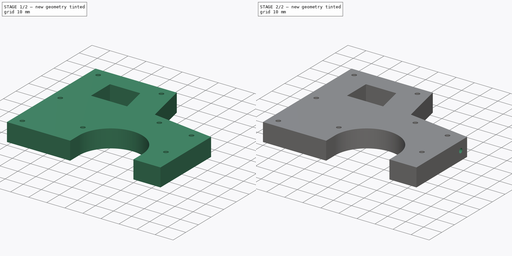
[diagram: build sequence overview — one tinted view per stage of 2, left to right]
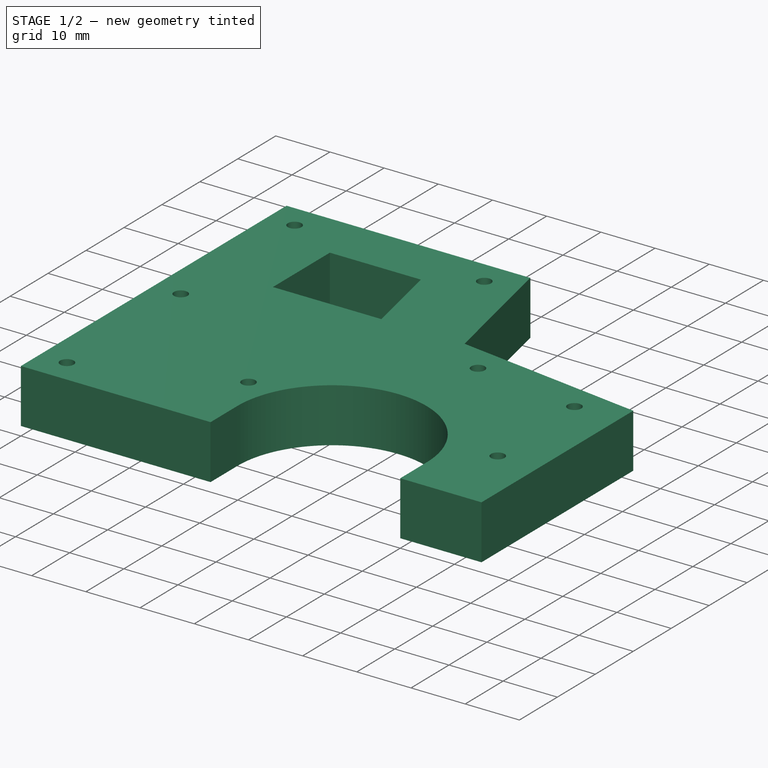
[diagram: stage 1 of 2 — iso view after this stage's code; geometry added in this stage tinted green]
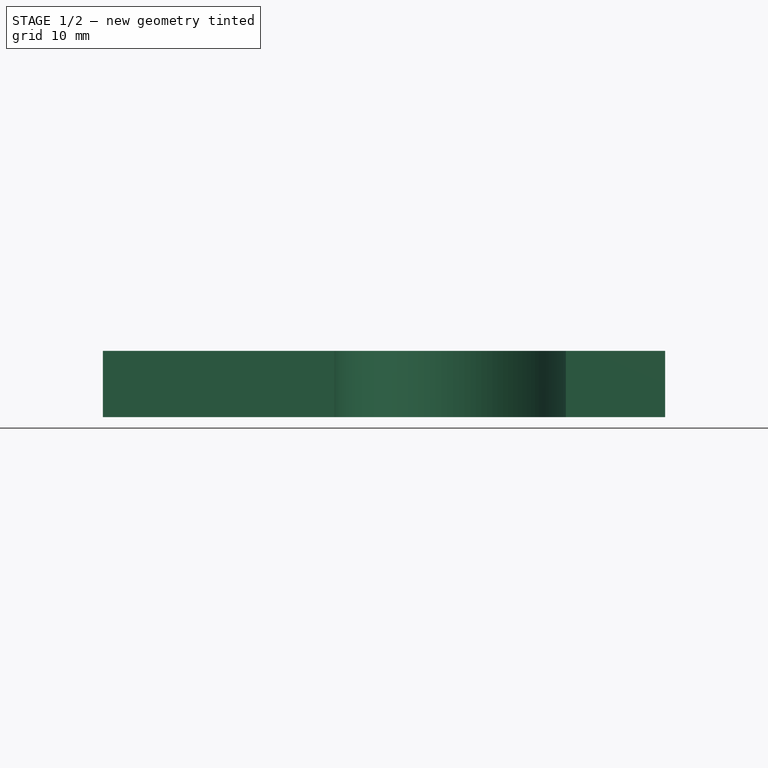
[diagram: stage 1 of 2 — front view after this stage's code; geometry added in this stage tinted green]
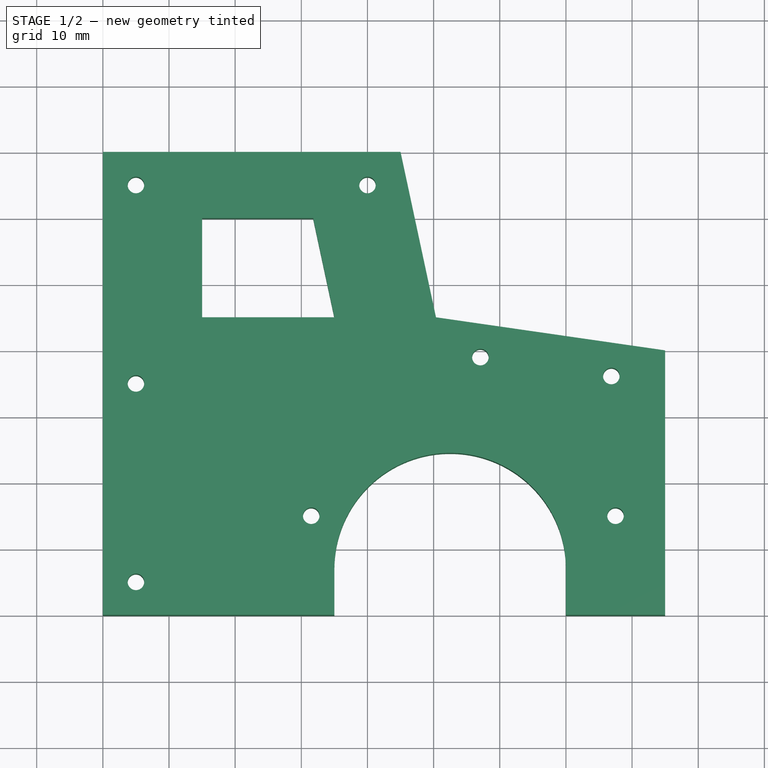
[diagram: stage 1 of 2 — top view after this stage's code; geometry added in this stage tinted green]
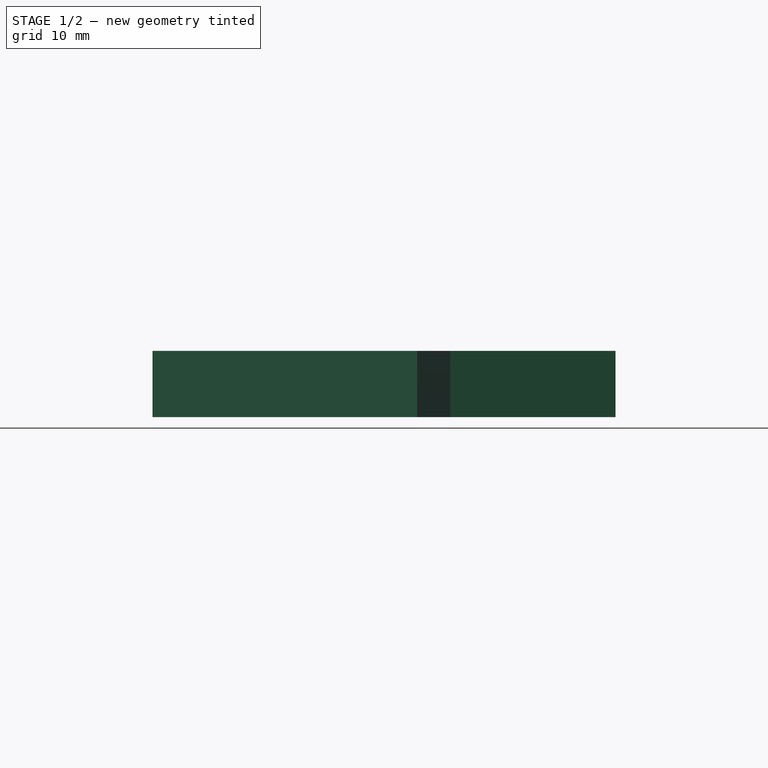
[diagram: stage 1 of 2 — right view after this stage's code; geometry added in this stage tinted green]
FCSTD DOCUMENT  (FreeCAD 0.19R)
Label: cabin_door
License: All rights reserved
LicenseURL: http://en.wikipedia.org/wiki/All_rights_reserved
objects: Sketcher::SketchObject×3, PartDesign::Pocket×2, PartDesign::Pad×1, PartDesign::Body×1
note: 10 computed .brp shape members not serialized (recipe doc carries the construction recipe); baked Part::Feature solids carry a one-line shape summary decoded from their .brp

FEATURE [Sketcher::SketchObject] Sketch
  MapMode = 5
  Support = -> [XY_Plane]
  sketch-geometry (14):
    g0: LineSegment StartX=0 StartY=0 StartZ=0 EndX=0 EndY=70 EndZ=0
    g1: LineSegment StartX=0 StartY=70 StartZ=0 EndX=45 EndY=70 EndZ=0
    g2: LineSegment StartX=45 StartY=70 StartZ=0 EndX=50.359 EndY=45 EndZ=0
    g3: LineSegment StartX=50.359 StartY=45 StartZ=0 EndX=85 EndY=40 EndZ=0
    g4: LineSegment StartX=85 StartY=40 StartZ=0 EndX=85 EndY=0 EndZ=0
    g5: LineSegment StartX=85 StartY=0 StartZ=0 EndX=70 EndY=0 EndZ=0
    g6: LineSegment StartX=0 StartY=0 StartZ=0 EndX=35 EndY=0 EndZ=0
    g7: LineSegment StartX=35 StartY=0 StartZ=0 EndX=35 EndY=7 EndZ=0
    g8: LineSegment StartX=70 StartY=0 StartZ=0 EndX=70 EndY=7 EndZ=0
    g9: ArcOfCircle CenterX=52.5 CenterY=7 CenterZ=0 NormalX=0 NormalY=0 NormalZ=1 AngleXU=0 Radius=17.5 StartAngle=1.7899e-08 EndAngle=3.14159
    g10: LineSegment StartX=15 StartY=60 StartZ=0 EndX=15 EndY=45 EndZ=0
    g11: LineSegment StartX=15 StartY=45 StartZ=0 EndX=35 EndY=45 EndZ=0
    g12: LineSegment StartX=35 StartY=45 StartZ=0 EndX=31.7846 EndY=60 EndZ=0
    g13: LineSegment StartX=31.7846 StartY=60 StartZ=0 EndX=15 EndY=60 EndZ=0
  constraints (42):
    c: Coincident(g0,g-1)
    c: PointOnObject(g0,g-2)
    c: Coincident(g1,g0)
    c: Horizontal(g1)
    c: Coincident(g2,g1)
    c: Coincident(g3,g2)
    c: Coincident(g4,g3)
    c: PointOnObject(g4,g-1)
    c: Vertical(g4)
    c: Coincident(g5,g4)
    c: PointOnObject(g5,g-1)
    c: Coincident(g6,g0)
    c: PointOnObject(g6,g-1)
    c: Coincident(g7,g6)
    c: Vertical(g7)
    c: Coincident(g8,g5)
    c: Vertical(g8)
    c: DistanceY(g7,g7) = 7
    c: Equal(g8,g7)
    c: DistanceX(g6,g6) = 35
    c: DistanceX(g5,g5) = 15
    c: DistanceX(g1,g1) = 45
    c: DistanceY(g0,g0) = 70
    c: DistanceY(g4,g4) = 40
    c: DistanceY(g2,g1) = 25
    c: Coincident(g9,g8)
    c: Coincident(g9,g7)
    c: Diameter(g9) = 35
    c: Tangent(g9,g8)
    c: Vertical(g10)
    c: Coincident(g11,g10)
    c: Horizontal(g11)
    c: Coincident(g12,g11)
    c: Coincident(g13,g12)
    c: Coincident(g13,g10)
    c: Parallel(g2,g12)
    c: Horizontal(g13)
    c: DistanceX(g0,g10) = 15
    c: DistanceX(g11,g11) = 20
    c: DistanceY(g10,g0) = 25
    c: Distance(g2,g3) = 35
    c: DistanceY(g12,g1) = 10
FEATURE [PartDesign::Pad] Pad
  Length = 10
  Length2 = 100
  Profile = -> Sketch
  Type = 0
FEATURE [Sketcher::SketchObject] Sketch001
  ExternalGeometry = -> [Pad]
  MapMode = 5
  Placement = pos=(0,0,10) rot=(0,0,1;0rad)
  Support = -> [Pad]
  sketch-geometry (9):
    g0: Circle CenterX=5 CenterY=5 CenterZ=0 NormalX=0 NormalY=0 NormalZ=1 AngleXU=0 Radius=1.25
    g1: Circle CenterX=5 CenterY=35 CenterZ=0 NormalX=0 NormalY=0 NormalZ=1 AngleXU=0 Radius=1.25
    g2: Circle CenterX=5 CenterY=65 CenterZ=0 NormalX=0 NormalY=0 NormalZ=1 AngleXU=0 Radius=1.25
    g3: Circle CenterX=40 CenterY=65 CenterZ=0 NormalX=0 NormalY=0 NormalZ=1 AngleXU=0 Radius=1.25
    g4: Circle CenterX=57.0678 CenterY=38.9799 CenterZ=0 NormalX=0 NormalY=0 NormalZ=1 AngleXU=0 Radius=1.25
    g5: Circle CenterX=76.8626 CenterY=36.1227 CenterZ=0 NormalX=0 NormalY=0 NormalZ=1 AngleXU=0 Radius=1.25
    g6: LineSegment [constr] StartX=85 StartY=40 StartZ=0 EndX=83.5714 EndY=30.1026 EndZ=0
    g7: Circle CenterX=77.5 CenterY=15 CenterZ=0 NormalX=0 NormalY=0 NormalZ=1 AngleXU=0 Radius=1.25
    g8: Circle CenterX=31.5 CenterY=15 CenterZ=0 NormalX=0 NormalY=0 NormalZ=1 AngleXU=0 Radius=1.25
  constraints (27):
    c: Diameter(g2) = 2.5
    c: Diameter(g1) = 2.5
    c: Diameter(g0) = 2.5
    c: DistanceY(g-1,g0) = 5
    c: DistanceX(g-1,g0) = 5
    c: DistanceX(g-1,g2) = 5
    c: DistanceX(g-1,g1) = 5
    c: DistanceY(g-1,g1) = 35
    c: DistanceY(g-1,g2) = 65
    c: Diameter(g3) = 2.5
    c: DistanceY(g-1,g3) = 65
    c: DistanceX(g-1,g3) = 40
    c: Diameter(g4) = 2.5
    c: Diameter(g5) = 2.5
    c: Distance(g5,g-3) = 5
    c: Distance(g4,g-3) = 5
    c: Coincident(g6,g-3)
    c: Perpendicular(g-3,g6)
    c: Distance(g6,g6) = 10
    c: Distance(g5,g6) = 7.5
    c: Distance(g4,g6) = 27.5
    c: Diameter(g7) = 2.5
    c: Distance(g7,g-4) = 7.5
    c: DistanceY(g-4,g7) = 15
    c: Distance(g8,g-5) = 3.5
    c: DistanceY(g-5,g8) = 15
    c: Diameter(g8) = 2.5
FEATURE [PartDesign::Pocket] Pocket
  BaseFeature = -> Pad
  Length = 10
  Length2 = 100
  Profile = -> Sketch001
  Type = 0
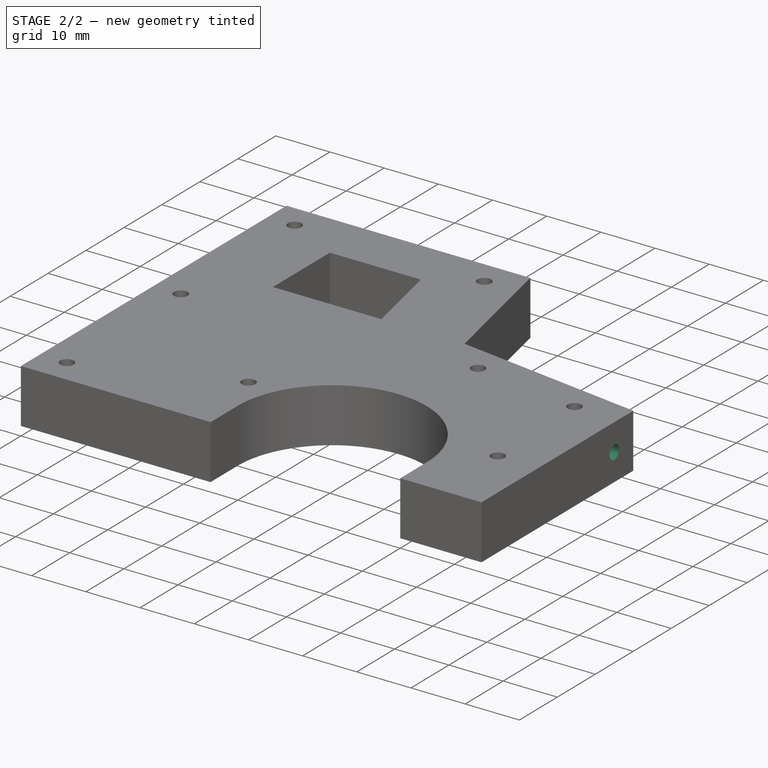
[diagram: stage 2 of 2 — iso view after this stage's code; geometry added in this stage tinted green]
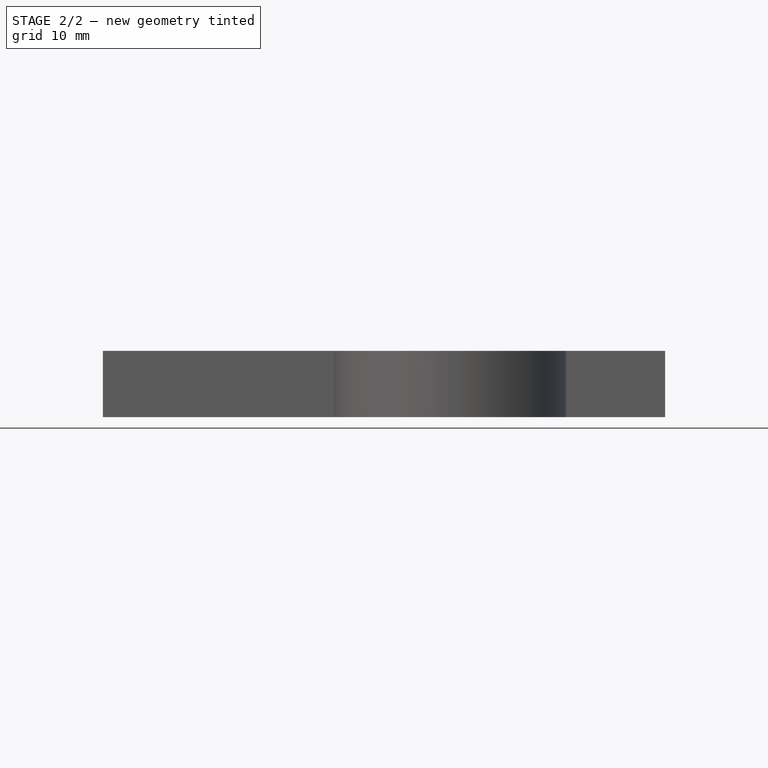
[diagram: stage 2 of 2 — front view after this stage's code; geometry added in this stage tinted green]
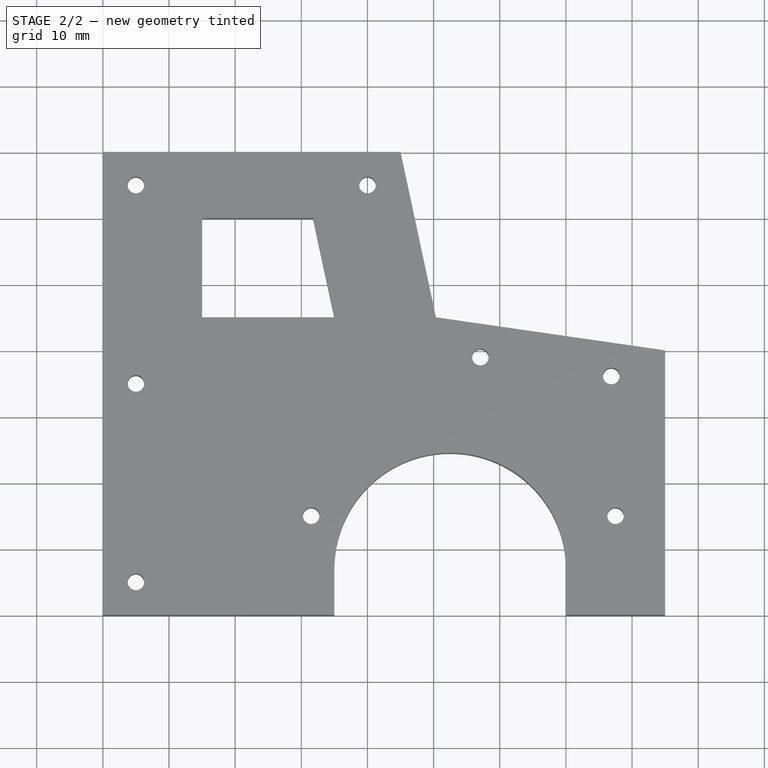
[diagram: stage 2 of 2 — top view after this stage's code; geometry added in this stage tinted green]
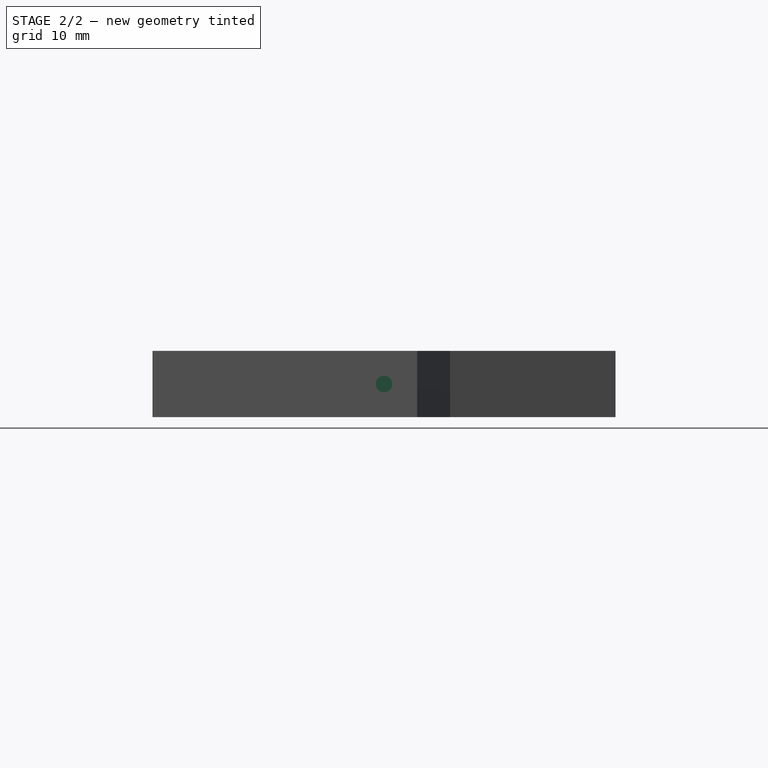
[diagram: stage 2 of 2 — right view after this stage's code; geometry added in this stage tinted green]
FEATURE [Sketcher::SketchObject] Sketch002
  ExternalGeometry = -> [Pocket]
  MapMode = 5
  Placement = pos=(85,0,0) rot=(0.57735,0.57735,0.57735;2.0944rad)
  Support = -> [Pocket]
  sketch-geometry (1):
    g0: Circle CenterX=35 CenterY=5 CenterZ=0 NormalX=0 NormalY=0 NormalZ=1 AngleXU=0 Radius=1.25
  constraints (3):
    c: Diameter(g0) = 2.5
    c: DistanceY(g-1,g0) = 5
    c: Distance(g0,g-3) = 5
FEATURE [PartDesign::Pocket] Pocket001
  BaseFeature = -> Pocket
  Length = 5
  Length2 = 100
  Profile = -> Sketch002
  Type = 0
FEATURE [PartDesign::Body] Body
  Group = -> [Sketch,Pad,Sketch001,Pocket,Sketch002,Pocket001]
  Origin = -> Origin
  Tip = -> Pocket001
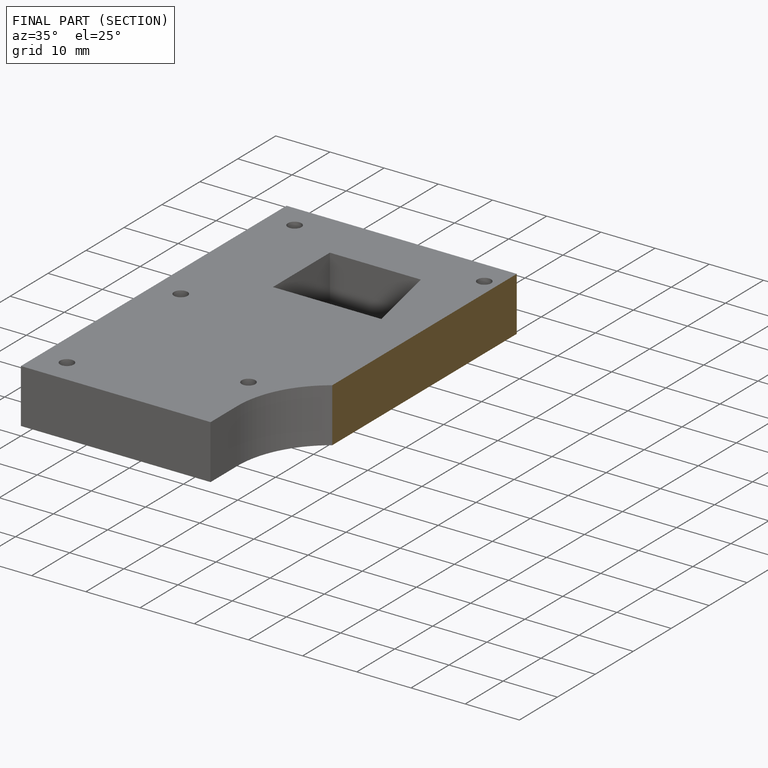
[diagram: finished part — half-section view (interior)]
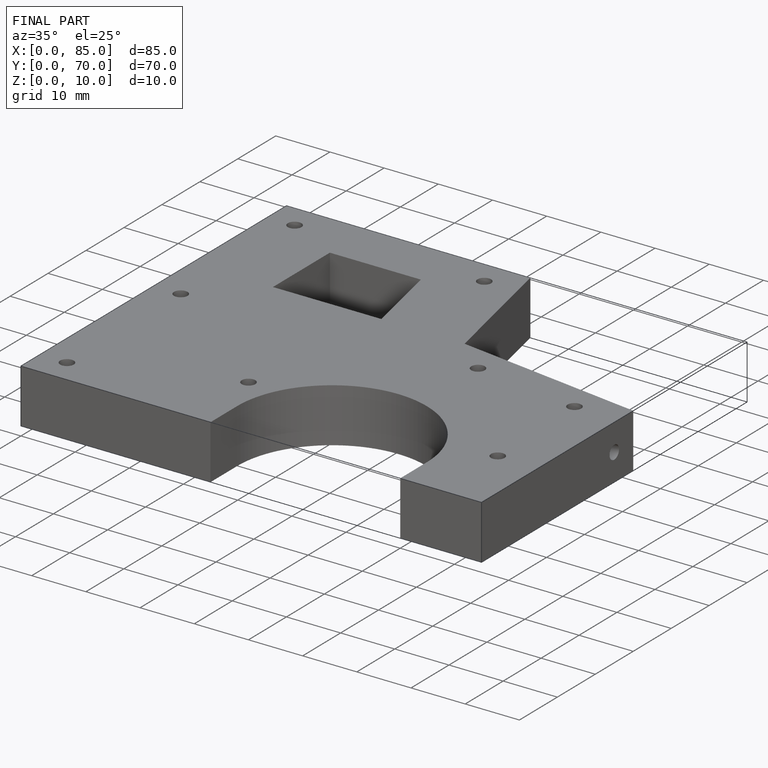
[diagram: finished part — iso view with bounding-box wireframe]
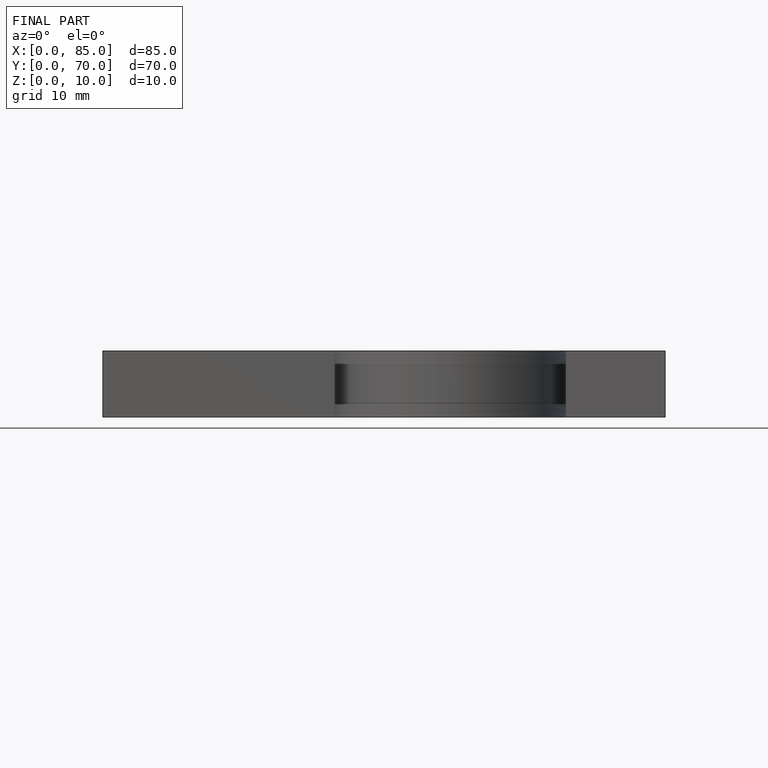
[diagram: finished part — front view with bounding-box wireframe]
